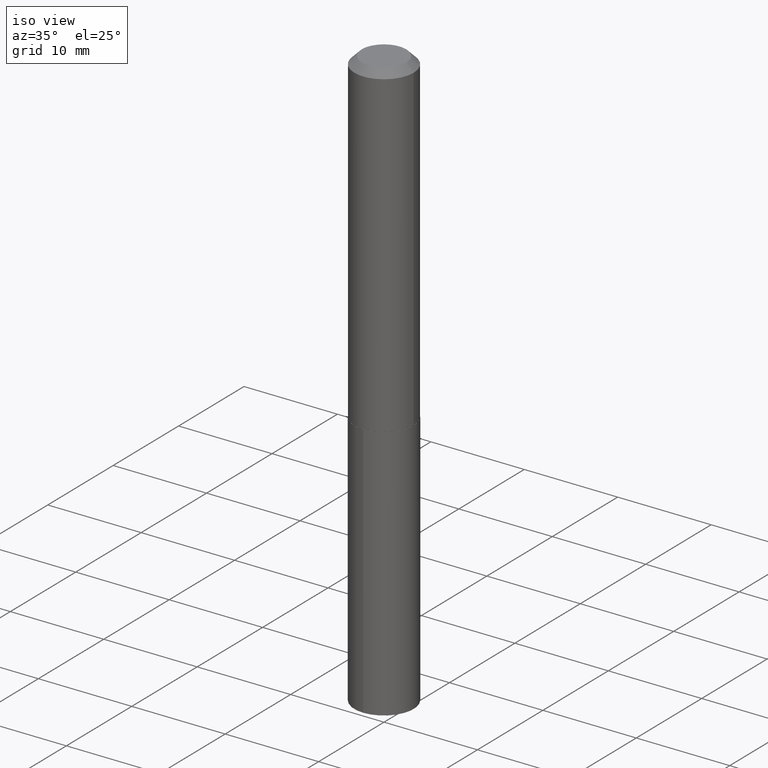
[diagram: clean part render]
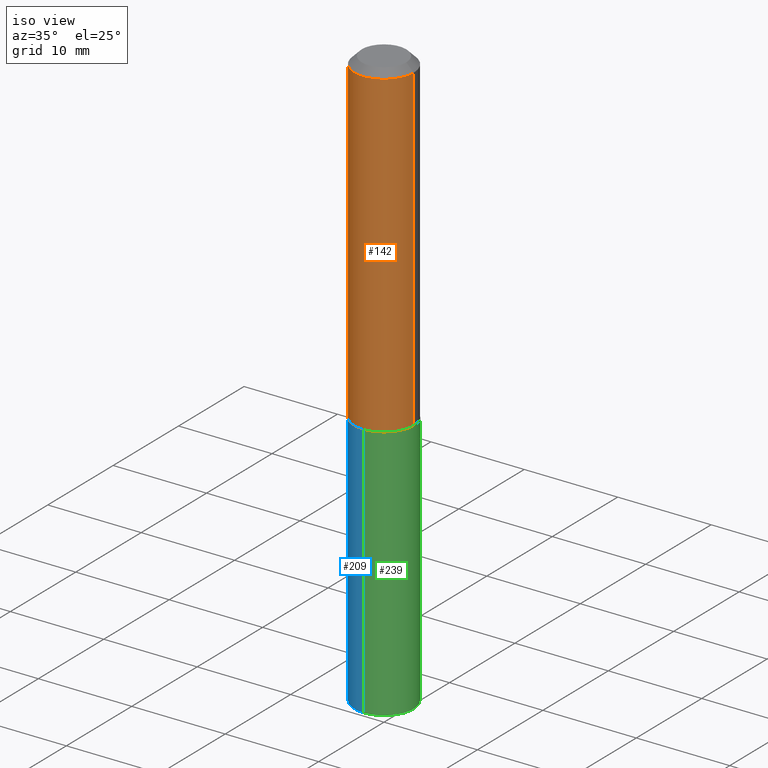
[diagram: same view with three faces highlighted in distinct colors, each labeled with its STEP entity id]
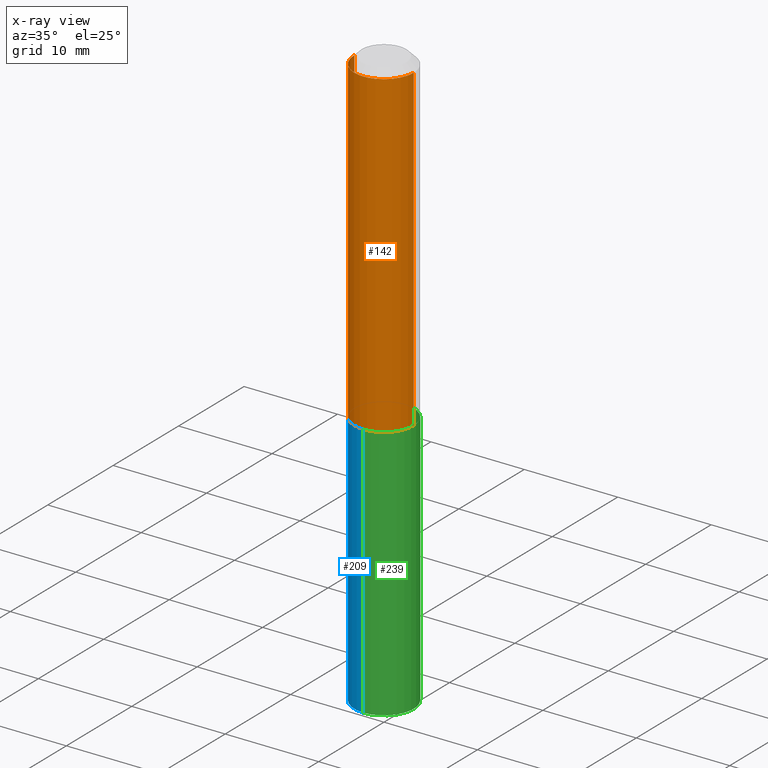
[diagram: x-ray of the same camera — body ghosted, the three highlighted faces saturated]
A machine part, iso view with three faces highlighted in distinct colors.
The next image is the same camera in x-ray (body ghosted, the three faces saturated) — at least one of them is partly hidden behind the body in this view.
Their STEP definitions:

[orange] entity #142 — the highlighted cylindrical surface (edge-blend (fillet) strip) has radius 3.175 mm, axis along (-0, 0, 1).
#23 = AXIS2_PLACEMENT_3D ( 'NONE', #109, #288, #225 ) ;
#26 = ORIENTED_EDGE ( 'NONE', *, *, #228, .F. ) ;
#41 = EDGE_CURVE ( 'NONE', #370, #86, #208, .T. ) ;
#50 = CARTESIAN_POINT ( 'NONE',  ( 0.1250000000000000833, -8.728703347107839305E-16, 6.095220969744923945E-30 ) ) ;
#56 = ORIENTED_EDGE ( 'NONE', *, *, #135, .F. ) ;
#65 = CARTESIAN_POINT ( 'NONE',  ( 3.361296874101470580E-29, -4.799041100239904215E-15, -1.374500000000000055 ) ) ;
#66 = AXIS2_PLACEMENT_3D ( 'NONE', #337, #99, #272 ) ;
#80 = CYLINDRICAL_SURFACE ( 'NONE', #23, 0.1250000000000000833 ) ;
#86 = VERTEX_POINT ( 'NONE', #185 ) ;
#99 = DIRECTION ( 'NONE',  ( -2.445468806185136597E-29, 3.491481338843145583E-15, 1.000000000000000000 ) ) ;
#102 = DIRECTION ( 'NONE',  ( -2.445468806185136877E-29, 3.491481338843145188E-15, 1.000000000000000000 ) ) ;
#109 = CARTESIAN_POINT ( 'NONE',  ( 0.000000000000000000, 0.000000000000000000, 0.000000000000000000 ) ) ;
#113 = EDGE_CURVE ( 'NONE', #86, #306, #372, .T. ) ;
#135 = EDGE_CURVE ( 'NONE', #370, #333, #231, .T. ) ;
#142 = ADVANCED_FACE ( 'NONE', ( #223 ), #80, .T. ) ;
#156 = DIRECTION ( 'NONE',  ( 1.000000000000000000, -6.982962677686269077E-15, 0.000000000000000000 ) ) ;
#159 = VECTOR ( 'NONE', #102, 39.37007874015748143 ) ;
#168 = DIRECTION ( 'NONE',  ( -2.445468806185136877E-29, 3.491481338843145188E-15, 1.000000000000000000 ) ) ;
#185 = CARTESIAN_POINT ( 'NONE',  ( 0.1250000000000001665, -5.671911434950688343E-15, -1.374500000000000055 ) ) ;
#189 = CARTESIAN_POINT ( 'NONE',  ( -0.1250000000000000000, -1.565896526339250439E-15, -0.03125000000000021511 ) ) ;
#197 = VECTOR ( 'NONE', #168, 39.37007874015748143 ) ;
#208 = CIRCLE ( 'NONE', #242, 0.1250000000000001665 ) ;
#223 = FACE_OUTER_BOUND ( 'NONE', #247, .T. ) ;
#225 = DIRECTION ( 'NONE',  ( 1.000000000000000000, -6.982962677686266711E-15, 4.876176775795935793E-29 ) ) ;
#228 = EDGE_CURVE ( 'NONE', #333, #306, #356, .T. ) ;
#231 = LINE ( 'NONE', #311, #159 ) ;
#242 = AXIS2_PLACEMENT_3D ( 'NONE', #65, #308, #156 ) ;
#247 = EDGE_LOOP ( 'NONE', ( #56, #353, #355, #26 ) ) ;
#272 = DIRECTION ( 'NONE',  ( 1.000000000000000000, -6.982962677686266711E-15, 0.000000000000000000 ) ) ;
#278 = CARTESIAN_POINT ( 'NONE',  ( -0.1250000000000001665, -3.910862680539777405E-15, -1.374500000000000055 ) ) ;
#288 = DIRECTION ( 'NONE',  ( -2.445468806185136597E-29, 3.491481338843145583E-15, 1.000000000000000000 ) ) ;
#306 = VERTEX_POINT ( 'NONE', #307 ) ;
#307 = CARTESIAN_POINT ( 'NONE',  ( 0.1250000000000000000, -9.819791265496324395E-16, -0.03125000000000021511 ) ) ;
#308 = DIRECTION ( 'NONE',  ( -2.445468806185136597E-29, 3.491481338843145583E-15, 1.000000000000000000 ) ) ;
#311 = CARTESIAN_POINT ( 'NONE',  ( -0.1250000000000000833, 8.881784197001258240E-16, -6.148668862818636431E-30 ) ) ;
#333 = VERTEX_POINT ( 'NONE', #189 ) ;
#337 = CARTESIAN_POINT ( 'NONE',  ( 7.642090019328604414E-31, -1.091087918388490513E-16, -0.03125000000000021511 ) ) ;
#353 = ORIENTED_EDGE ( 'NONE', *, *, #41, .T. ) ;
#355 = ORIENTED_EDGE ( 'NONE', *, *, #113, .T. ) ;
#356 = CIRCLE ( 'NONE', #66, 0.1250000000000000000 ) ;
#370 = VERTEX_POINT ( 'NONE', #278 ) ;
#372 = LINE ( 'NONE', #50, #197 ) ;

[blue] entity #209 — the highlighted cylindrical surface (edge-blend (fillet) strip) has radius 3.175 mm, axis along (-0, 0, 1).
#1 = CARTESIAN_POINT ( 'NONE',  ( 8.881784197001853830E-16, 0.1249999999999951983, -1.375000000000000444 ) ) ;
#24 = EDGE_CURVE ( 'NONE', #30, #268, #219, .T. ) ;
#30 = VERTEX_POINT ( 'NONE', #43 ) ;
#33 = ORIENTED_EDGE ( 'NONE', *, *, #271, .F. ) ;
#39 = DIRECTION ( 'NONE',  ( -2.445639892400874138E-29, 3.491236333644586467E-15, 1.000000000000000000 ) ) ;
#43 = CARTESIAN_POINT ( 'NONE',  ( -8.728703347107231882E-16, -0.1250000000000085487, -2.454503720716724846 ) ) ;
#44 = CARTESIAN_POINT ( 'NONE',  ( -8.728703347107496150E-16, -0.1250000000000048017, -1.374999999999999334 ) ) ;
#60 = VERTEX_POINT ( 'NONE', #1 ) ;
#67 = DIRECTION ( 'NONE',  ( -6.982962677686265922E-15, -1.000000000000000000, 4.370956789862821150E-15 ) ) ;
#69 = CARTESIAN_POINT ( 'NONE',  ( 8.881784197001587589E-16, 0.1249999999999951983, -1.375000000000000444 ) ) ;
#83 = EDGE_CURVE ( 'NONE', #274, #30, #330, .T. ) ;
#89 = EDGE_LOOP ( 'NONE', ( #33, #150, #116, #127 ) ) ;
#92 = CARTESIAN_POINT ( 'NONE',  ( 6.002596971884558462E-29, -8.569589452980074895E-15, -2.454503720716725290 ) ) ;
#94 = AXIS2_PLACEMENT_3D ( 'NONE', #92, #215, #329 ) ;
#96 = DIRECTION ( 'NONE',  ( -2.445639892400874138E-29, 3.491236333644586467E-15, 1.000000000000000000 ) ) ;
#97 = EDGE_CURVE ( 'NONE', #60, #268, #104, .T. ) ;
#104 = CIRCLE ( 'NONE', #212, 0.1250000000000000000 ) ;
#105 = DIRECTION ( 'NONE',  ( -6.982962677686265922E-15, -1.000000000000000000, 4.370956789862821150E-15 ) ) ;
#116 = ORIENTED_EDGE ( 'NONE', *, *, #24, .T. ) ;
#118 = VECTOR ( 'NONE', #96, 39.37007874015748143 ) ;
#127 = ORIENTED_EDGE ( 'NONE', *, *, #97, .F. ) ;
#139 = AXIS2_PLACEMENT_3D ( 'NONE', #214, #39, #67 ) ;
#150 = ORIENTED_EDGE ( 'NONE', *, *, #83, .T. ) ;
#170 = DIRECTION ( 'NONE',  ( -2.445639892400874138E-29, 3.491236333644586467E-15, 1.000000000000000000 ) ) ;
#183 = DIRECTION ( 'NONE',  ( -2.445639892400874138E-29, 3.491236333644586467E-15, 1.000000000000000000 ) ) ;
#192 = CARTESIAN_POINT ( 'NONE',  ( -8.728703347107496150E-16, -0.1250000000000048017, -1.374999999999999334 ) ) ;
#195 = CARTESIAN_POINT ( 'NONE',  ( 3.362519608504562260E-29, -4.800786840909324930E-15, -1.375000000000000000 ) ) ;
#209 = ADVANCED_FACE ( 'NONE', ( #264 ), #382, .T. ) ;
#212 = AXIS2_PLACEMENT_3D ( 'NONE', #195, #170, #105 ) ;
#214 = CARTESIAN_POINT ( 'NONE',  ( 3.362519608504562260E-29, -4.800786840909324930E-15, -1.375000000000000000 ) ) ;
#215 = DIRECTION ( 'NONE',  ( -2.445639892400874138E-29, 3.491236333644586467E-15, 1.000000000000000000 ) ) ;
#219 = LINE ( 'NONE', #192, #359 ) ;
#221 = CARTESIAN_POINT ( 'NONE',  ( 8.881784197001849886E-16, 0.1249999999999914235, -2.454503720716725734 ) ) ;
#264 = FACE_OUTER_BOUND ( 'NONE', #89, .T. ) ;
#268 = VERTEX_POINT ( 'NONE', #44 ) ;
#271 = EDGE_CURVE ( 'NONE', #274, #60, #298, .T. ) ;
#274 = VERTEX_POINT ( 'NONE', #221 ) ;
#298 = LINE ( 'NONE', #69, #118 ) ;
#329 = DIRECTION ( 'NONE',  ( -6.982962677686265922E-15, -1.000000000000000000, 4.370956789862821150E-15 ) ) ;
#330 = CIRCLE ( 'NONE', #94, 0.1250000000000000000 ) ;
#359 = VECTOR ( 'NONE', #183, 39.37007874015748143 ) ;
#382 = CYLINDRICAL_SURFACE ( 'NONE', #139, 0.1250000000000000000 ) ;

[green] entity #239 — the highlighted cylindrical surface (edge-blend (fillet) strip) has radius 3.175 mm, axis along (-0, 0, 1).
#1 = CARTESIAN_POINT ( 'NONE',  ( 8.881784197001853830E-16, 0.1249999999999951983, -1.375000000000000444 ) ) ;
#8 = DIRECTION ( 'NONE',  ( -6.982962677686265922E-15, -1.000000000000000000, 4.370956789862821150E-15 ) ) ;
#24 = EDGE_CURVE ( 'NONE', #30, #268, #219, .T. ) ;
#30 = VERTEX_POINT ( 'NONE', #43 ) ;
#37 = DIRECTION ( 'NONE',  ( -2.445639892400874138E-29, 3.491236333644586467E-15, 1.000000000000000000 ) ) ;
#43 = CARTESIAN_POINT ( 'NONE',  ( -8.728703347107231882E-16, -0.1250000000000085487, -2.454503720716724846 ) ) ;
#44 = CARTESIAN_POINT ( 'NONE',  ( -8.728703347107496150E-16, -0.1250000000000048017, -1.374999999999999334 ) ) ;
#60 = VERTEX_POINT ( 'NONE', #1 ) ;
#61 = CARTESIAN_POINT ( 'NONE',  ( 3.362519608504562260E-29, -4.800786840909324930E-15, -1.375000000000000000 ) ) ;
#69 = CARTESIAN_POINT ( 'NONE',  ( 8.881784197001587589E-16, 0.1249999999999951983, -1.375000000000000444 ) ) ;
#85 = AXIS2_PLACEMENT_3D ( 'NONE', #216, #282, #281 ) ;
#87 = EDGE_CURVE ( 'NONE', #30, #274, #256, .T. ) ;
#96 = DIRECTION ( 'NONE',  ( -2.445639892400874138E-29, 3.491236333644586467E-15, 1.000000000000000000 ) ) ;
#118 = VECTOR ( 'NONE', #96, 39.37007874015748143 ) ;
#122 = FACE_OUTER_BOUND ( 'NONE', #390, .T. ) ;
#163 = ORIENTED_EDGE ( 'NONE', *, *, #350, .F. ) ;
#179 = AXIS2_PLACEMENT_3D ( 'NONE', #276, #186, #8 ) ;
#183 = DIRECTION ( 'NONE',  ( -2.445639892400874138E-29, 3.491236333644586467E-15, 1.000000000000000000 ) ) ;
#186 = DIRECTION ( 'NONE',  ( -2.445639892400874138E-29, 3.491236333644586467E-15, 1.000000000000000000 ) ) ;
#192 = CARTESIAN_POINT ( 'NONE',  ( -8.728703347107496150E-16, -0.1250000000000048017, -1.374999999999999334 ) ) ;
#216 = CARTESIAN_POINT ( 'NONE',  ( 6.002596971884558462E-29, -8.569589452980074895E-15, -2.454503720716725290 ) ) ;
#219 = LINE ( 'NONE', #192, #359 ) ;
#221 = CARTESIAN_POINT ( 'NONE',  ( 8.881784197001849886E-16, 0.1249999999999914235, -2.454503720716725734 ) ) ;
#239 = ADVANCED_FACE ( 'NONE', ( #122 ), #248, .T. ) ;
#241 = ORIENTED_EDGE ( 'NONE', *, *, #24, .F. ) ;
#248 = CYLINDRICAL_SURFACE ( 'NONE', #179, 0.1250000000000000000 ) ;
#256 = CIRCLE ( 'NONE', #85, 0.1250000000000000000 ) ;
#266 = CIRCLE ( 'NONE', #310, 0.1250000000000000000 ) ;
#268 = VERTEX_POINT ( 'NONE', #44 ) ;
#270 = ORIENTED_EDGE ( 'NONE', *, *, #87, .T. ) ;
#271 = EDGE_CURVE ( 'NONE', #274, #60, #298, .T. ) ;
#274 = VERTEX_POINT ( 'NONE', #221 ) ;
#276 = CARTESIAN_POINT ( 'NONE',  ( 3.362519608504562260E-29, -4.800786840909324930E-15, -1.375000000000000000 ) ) ;
#281 = DIRECTION ( 'NONE',  ( -6.982962677686265922E-15, -1.000000000000000000, 4.370956789862821150E-15 ) ) ;
#282 = DIRECTION ( 'NONE',  ( -2.445639892400874138E-29, 3.491236333644586467E-15, 1.000000000000000000 ) ) ;
#298 = LINE ( 'NONE', #69, #118 ) ;
#310 = AXIS2_PLACEMENT_3D ( 'NONE', #61, #37, #374 ) ;
#350 = EDGE_CURVE ( 'NONE', #268, #60, #266, .T. ) ;
#359 = VECTOR ( 'NONE', #183, 39.37007874015748143 ) ;
#362 = ORIENTED_EDGE ( 'NONE', *, *, #271, .T. ) ;
#374 = DIRECTION ( 'NONE',  ( -6.982962677686265922E-15, -1.000000000000000000, 4.370956789862821150E-15 ) ) ;
#390 = EDGE_LOOP ( 'NONE', ( #270, #362, #163, #241 ) ) ;